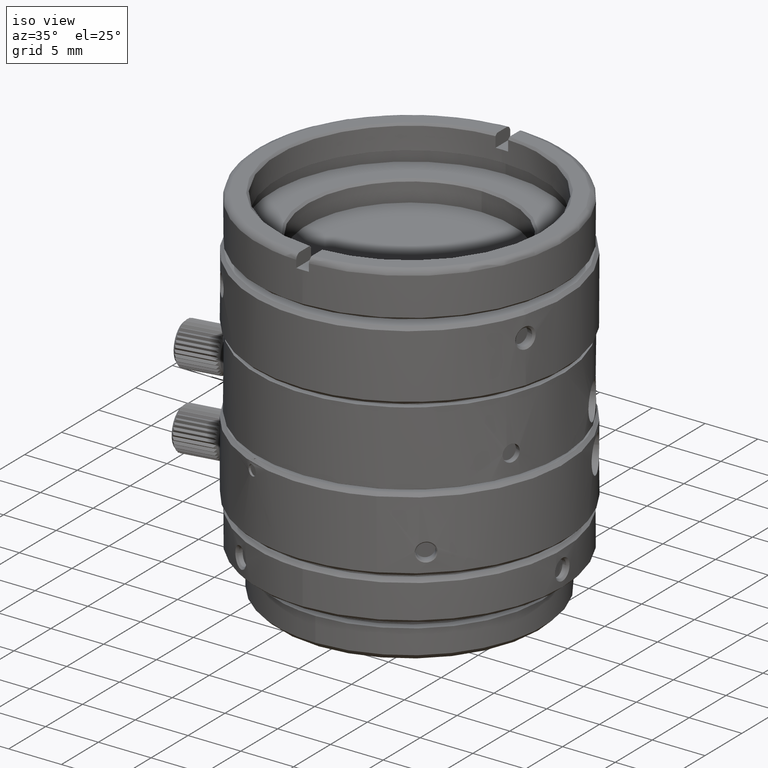
[diagram: clean part render]
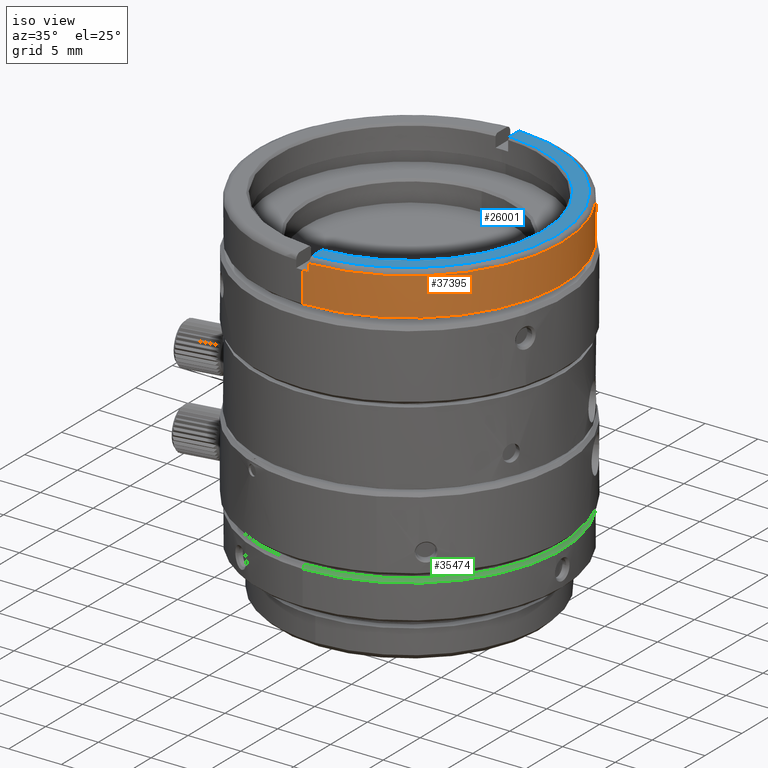
[diagram: same view with three faces highlighted in distinct colors, each labeled with its STEP entity id]
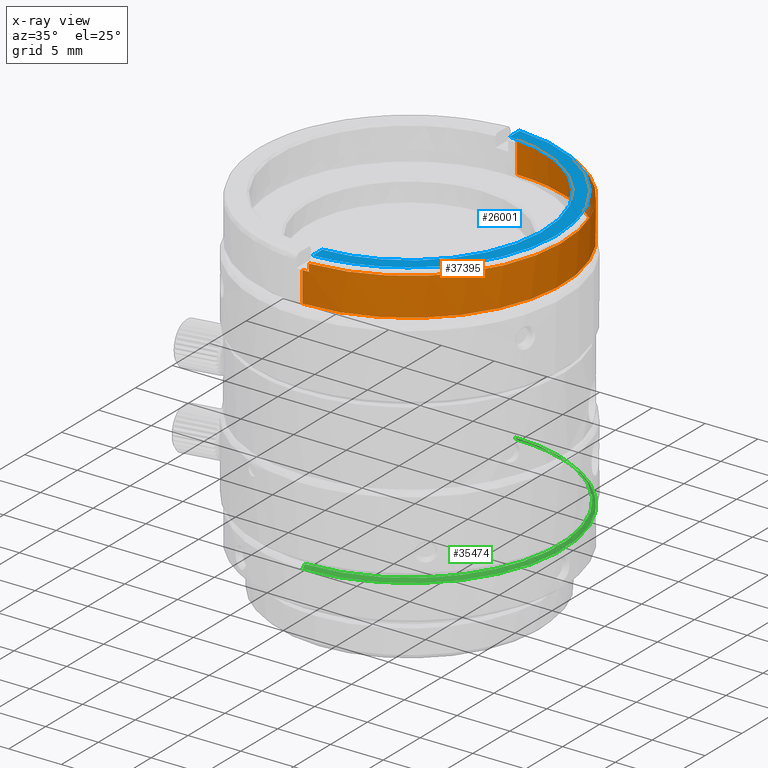
[diagram: x-ray of the same camera — body ghosted, the three highlighted faces saturated]
A machine part, iso view with three faces highlighted in distinct colors.
The next image is the same camera in x-ray (body ghosted, the three faces saturated) — at least one of them is partly hidden behind the body in this view.
Their STEP definitions:

[orange] entity #37395 — the highlighted face is a freeform B-spline surface patch.
#5 = ORIENTED_EDGE ( 'NONE', *, *, #25646, .T. ) ;
#1351 = B_SPLINE_CURVE_WITH_KNOTS ( 'NONE', 1,
 ( #5919, #9280 ),
 .UNSPECIFIED., .F., .F.,
 ( 2, 2 ),
 ( -1.000000000000000000, 0.0000000000000000000 ),
 .UNSPECIFIED. ) ;
#2759 = CARTESIAN_POINT ( 'NONE',  ( -2.322999127010760338E-09, 14.50000000000000000, 23.95340589699999967 ) ) ;
#3179 = VERTEX_POINT ( 'NONE', #2759 ) ;
#4772 = CARTESIAN_POINT ( 'NONE',  ( 0.6000000017153049869, -14.48758088861630000, 26.85340589753334939 ) ) ;
#5438 = CARTESIAN_POINT ( 'NONE',  ( 0.2000856856000000072, -14.49999999967433872, 26.85340589699999825 ) ) ;
#5919 = CARTESIAN_POINT ( 'NONE',  ( 2.322999127010760338E-09, -14.50000000000000000, 23.95340589699999967 ) ) ;
#6246 = CARTESIAN_POINT ( 'NONE',  ( 28.99999998884399233, -14.49999998810400470, 27.55340589699999754 ) ) ;
#7281 = CARTESIAN_POINT ( 'NONE',  ( 2.322999127010760338E-09, -14.50000000000000000, 23.95340589699999967 ) ) ;
#7839 =( BOUNDED_SURFACE ( )  B_SPLINE_SURFACE ( 1, 3, ( 
 ( #31211, #31004, #25110, #15273 ),
 ( #15481, #6246, #11703, #21981 ) ),
 .UNSPECIFIED., .F., .F., .T. ) 
 B_SPLINE_SURFACE_WITH_KNOTS ( ( 2, 2 ),
 ( 4, 4 ),
 ( 0.0000000000000000000, 1.000000000000000000 ),
 ( 0.0000000000000000000, 1.000000000000000000 ),
 .UNSPECIFIED. ) 
 GEOMETRIC_REPRESENTATION_ITEM ( )  RATIONAL_B_SPLINE_SURFACE ( (
 ( 1.000000000000000000, 0.3333333335299311084, 0.3333333335299311084, 1.000000000000000000),
 ( 1.000000000000000000, 0.3333333335299311084, 0.3333333335299311084, 1.000000000000000000) ) ) 
 REPRESENTATION_ITEM ( '' )  SURFACE ( )  );
#8767 = CARTESIAN_POINT ( 'NONE',  ( 2.322999127010760338E-09, -14.50000000000000000, 23.95340589699999967 ) ) ;
#9280 = CARTESIAN_POINT ( 'NONE',  ( 3.965332951296399337E-09, -14.49999999989143973, 26.85340589806665079 ) ) ;
#10019 = ORIENTED_EDGE ( 'NONE', *, *, #22823, .F. ) ;
#11135 = CARTESIAN_POINT ( 'NONE',  ( 27.33757960749307614, 13.38024985855763305, 27.55340589656657713 ) ) ;
#11368 = CARTESIAN_POINT ( 'NONE',  ( 0.6000000006015938636, 14.48758088866241955, 26.85340589753334939 ) ) ;
#11703 = CARTESIAN_POINT ( 'NONE',  ( 28.99999998550000058, 14.49999999479199886, 27.55340589699999754 ) ) ;
#12047 = CARTESIAN_POINT ( 'NONE',  ( 0.6000000030676410079, -14.48758088805265842, 27.55340589672220020 ) ) ;
#14809 = VERTEX_POINT ( 'NONE', #38452 ) ;
#14970 = ORIENTED_EDGE ( 'NONE', *, *, #24706, .F. ) ;
#15090 = CARTESIAN_POINT ( 'NONE',  ( 0.6000000017153049869, -14.48758088861630000, 26.85340589753334939 ) ) ;
#15098 = CARTESIAN_POINT ( 'NONE',  ( 0.6000000030676410079, -14.48758088805265842, 27.55340589672220020 ) ) ;
#15140 = CARTESIAN_POINT ( 'NONE',  ( 0.4000856856000000739, 14.49586029631310957, 26.85340589699999825 ) ) ;
#15273 = CARTESIAN_POINT ( 'NONE',  ( 2.604002345846171548E-09, 14.50000000000000000, 23.95340589699999967 ) ) ;
#15481 = CARTESIAN_POINT ( 'NONE',  ( 5.947999426944603969E-09, -14.50000000000000000, 27.55340589699999754 ) ) ;
#15811 = VERTEX_POINT ( 'NONE', #4772 ) ;
#17667 = VERTEX_POINT ( 'NONE', #12047 ) ;
#18328 = CARTESIAN_POINT ( 'NONE',  ( 0.6000000030676410079, -14.48758088805265842, 27.55340589672220020 ) ) ;
#20496 = B_SPLINE_CURVE_WITH_KNOTS ( 'NONE', 3,
 ( #34386, #5438, #31032, #15090 ),
 .UNSPECIFIED., .F., .F.,
 ( 4, 4 ),
 ( 4.712388980384689674, 4.753780108441049812 ),
 .UNSPECIFIED. ) ;
#21972 = CARTESIAN_POINT ( 'NONE',  ( -2.322999127010760338E-09, 14.50000000000000000, 23.95340589699999967 ) ) ;
#21981 = CARTESIAN_POINT ( 'NONE',  ( 2.604002345846171548E-09, 14.50000000000000000, 27.55340589699999754 ) ) ;
#22823 = EDGE_CURVE ( 'NONE', #17667, #31902, #36740, .T. ) ;
#23126 = ORIENTED_EDGE ( 'NONE', *, *, #39877, .F. ) ;
#23692 = FACE_OUTER_BOUND ( 'NONE', #25580, .T. ) ;
#24117 = CARTESIAN_POINT ( 'NONE',  ( 27.33757960749307614, -13.38024985855763305, 27.55340589656657713 ) ) ;
#24360 = ORIENTED_EDGE ( 'NONE', *, *, #36478, .T. ) ;
#24706 = EDGE_CURVE ( 'NONE', #38922, #3179, #37491, .T. ) ;
#24897 = CARTESIAN_POINT ( 'NONE',  ( 28.99999998550000768, 14.49999999479199175, 23.95340589699999967 ) ) ;
#25110 = CARTESIAN_POINT ( 'NONE',  ( 28.99999998550000058, 14.49999999479199886, 23.95340589699999612 ) ) ;
#25364 = EDGE_CURVE ( 'NONE', #14809, #15811, #20496, .T. ) ;
#25580 = EDGE_LOOP ( 'NONE', ( #24360, #14970, #23126, #5, #10019, #40103, #26231, #35259 ) ) ;
#25590 = B_SPLINE_CURVE_WITH_KNOTS ( 'NONE', 1,
 ( #18328, #31140 ),
 .UNSPECIFIED., .F., .F.,
 ( 2, 2 ),
 ( -1.000000000000000000, 0.0000000000000000000 ),
 .UNSPECIFIED. ) ;
#25646 = EDGE_CURVE ( 'NONE', #39993, #31902, #40025, .T. ) ;
#26136 = CARTESIAN_POINT ( 'NONE',  ( 0.6000000019539299956, 14.48758088809879929, 27.55340589672220020 ) ) ;
#26231 = ORIENTED_EDGE ( 'NONE', *, *, #25364, .F. ) ;
#30135 = CARTESIAN_POINT ( 'NONE',  ( 0.6000000019539299956, 14.48758088809879929, 27.55340589672220020 ) ) ;
#30428 = B_SPLINE_CURVE_WITH_KNOTS ( 'NONE', 3,
 ( #32375, #15140, #37166, #33824 ),
 .UNSPECIFIED., .F., .F.,
 ( 4, 4 ),
 ( 1.529405198738539973, 1.570796326794895004 ),
 .UNSPECIFIED. ) ;
#31004 = CARTESIAN_POINT ( 'NONE',  ( 28.99999998884399233, -14.49999998810400470, 23.95340589699999612 ) ) ;
#31032 = CARTESIAN_POINT ( 'NONE',  ( 0.4000856856000000183, -14.49586029631311135, 26.85340589699999825 ) ) ;
#31140 = CARTESIAN_POINT ( 'NONE',  ( 0.6000000017153049869, -14.48758088861630000, 26.85340589753334939 ) ) ;
#31211 = CARTESIAN_POINT ( 'NONE',  ( 5.947999426944603969E-09, -14.50000000000000000, 23.95340589699999967 ) ) ;
#31393 = EDGE_CURVE ( 'NONE', #36596, #14809, #1351, .T. ) ;
#31646 = CARTESIAN_POINT ( 'NONE',  ( 8.680007819487239529E-10, 14.49999999989143973, 26.85340589806665079 ) ) ;
#31850 = CARTESIAN_POINT ( 'NONE',  ( -2.322999127010760338E-09, 14.50000000000000000, 23.95340589699999967 ) ) ;
#31902 = VERTEX_POINT ( 'NONE', #30135 ) ;
#32375 = CARTESIAN_POINT ( 'NONE',  ( 0.6000000006015938636, 14.48758088866241955, 26.85340589753334939 ) ) ;
#33824 = CARTESIAN_POINT ( 'NONE',  ( 8.680007819487239529E-10, 14.49999999989143973, 26.85340589806665079 ) ) ;
#34186 = CARTESIAN_POINT ( 'NONE',  ( 0.6000000019539299956, 14.48758088809879752, 27.55340589672220020 ) ) ;
#34266 = CARTESIAN_POINT ( 'NONE',  ( 8.680007819487239529E-10, 14.49999999989143973, 26.85340589806665079 ) ) ;
#34386 = CARTESIAN_POINT ( 'NONE',  ( 3.965332951296399337E-09, -14.49999999989143973, 26.85340589806665079 ) ) ;
#34896 =( BOUNDED_CURVE ( )  B_SPLINE_CURVE ( 3, ( #8767, #40647, #24897, #21972 ),
 .UNSPECIFIED., .F., .T. ) 
 B_SPLINE_CURVE_WITH_KNOTS ( ( 4, 4 ),
 ( -7.853981633974480125, -4.712388980384689674 ),
 .UNSPECIFIED. ) 
 CURVE ( )  GEOMETRIC_REPRESENTATION_ITEM ( )  RATIONAL_B_SPLINE_CURVE ( ( 1.000000000000000000, 0.3333333335299309419, 0.3333333335299309419, 1.000000000000000000 ) ) 
 REPRESENTATION_ITEM ( '' )  );
#35259 = ORIENTED_EDGE ( 'NONE', *, *, #31393, .F. ) ;
#36478 = EDGE_CURVE ( 'NONE', #36596, #3179, #34896, .T. ) ;
#36596 = VERTEX_POINT ( 'NONE', #7281 ) ;
#36740 =( BOUNDED_CURVE ( )  B_SPLINE_CURVE ( 3, ( #15098, #24117, #11135, #34186 ),
 .UNSPECIFIED., .F., .F. ) 
 B_SPLINE_CURVE_WITH_KNOTS ( ( 4, 4 ),
 ( 4.753780108441049812, 7.812590505918129757 ),
 .UNSPECIFIED. ) 
 CURVE ( )  GEOMETRIC_REPRESENTATION_ITEM ( )  RATIONAL_B_SPLINE_CURVE ( ( 0.9397289228042475795, 0.3391665309306119980, 0.3391665309306119980, 0.9397289228042476905 ) ) 
 REPRESENTATION_ITEM ( '' )  );
#37166 = CARTESIAN_POINT ( 'NONE',  ( 0.2000856856000000072, 14.49999999967433872, 26.85340589699999825 ) ) ;
#37395 = ADVANCED_FACE ( 'NONE', ( #23692 ), #7839, .F. ) ;
#37491 = B_SPLINE_CURVE_WITH_KNOTS ( 'NONE', 1,
 ( #31646, #31850 ),
 .UNSPECIFIED., .F., .F.,
 ( 2, 2 ),
 ( -1.000000000000000000, 0.0000000000000000000 ),
 .UNSPECIFIED. ) ;
#37890 = EDGE_CURVE ( 'NONE', #17667, #15811, #25590, .T. ) ;
#38452 = CARTESIAN_POINT ( 'NONE',  ( 3.965332951296399337E-09, -14.49999999989143973, 26.85340589806665079 ) ) ;
#38922 = VERTEX_POINT ( 'NONE', #34266 ) ;
#38934 = CARTESIAN_POINT ( 'NONE',  ( 0.6000000006015938636, 14.48758088866241955, 26.85340589753334939 ) ) ;
#39877 = EDGE_CURVE ( 'NONE', #39993, #38922, #30428, .T. ) ;
#39993 = VERTEX_POINT ( 'NONE', #11368 ) ;
#40025 = B_SPLINE_CURVE_WITH_KNOTS ( 'NONE', 1,
 ( #38934, #26136 ),
 .UNSPECIFIED., .F., .F.,
 ( 2, 2 ),
 ( -1.000000000000000000, 0.0000000000000000000 ),
 .UNSPECIFIED. ) ;
#40103 = ORIENTED_EDGE ( 'NONE', *, *, #37890, .T. ) ;
#40647 = CARTESIAN_POINT ( 'NONE',  ( 28.99999998884399588, -14.49999998810401358, 23.95340589699999967 ) ) ;

[blue] entity #26001 — the highlighted face is a freeform B-spline surface patch.
#55 = CARTESIAN_POINT ( 'NONE',  ( 26.34210527417061698, -12.88288930120843645, 28.05340589639747506 ) ) ;
#1469 = CARTESIAN_POINT ( 'NONE',  ( 0.5999999999999999778, 14.15498259100000134, 28.05340589699999754 ) ) ;
#1731 = VERTEX_POINT ( 'NONE', #39033 ) ;
#1789 = CARTESIAN_POINT ( 'NONE',  ( 0.5999999982561829981, 12.68581885515174079, 28.05340589699999754 ) ) ;
#1990 = CARTESIAN_POINT ( 'NONE',  ( 3.776397085829599654, 12.15247870427938359, 28.05340589700000109 ) ) ;
#2390 = EDGE_CURVE ( 'NONE', #25957, #1731, #9959, .T. ) ;
#2781 = VERTEX_POINT ( 'NONE', #15036 ) ;
#3348 = ORIENTED_EDGE ( 'NONE', *, *, #2390, .F. ) ;
#5366 = CARTESIAN_POINT ( 'NONE',  ( 4.537181824627853466, -11.88940261533938170, 28.05340589700000109 ) ) ;
#5933 = ORIENTED_EDGE ( 'NONE', *, *, #31107, .T. ) ;
#6558 = CARTESIAN_POINT ( 'NONE',  ( 0.5999999999907850157, -12.68581885506969975, 28.05340589699999754 ) ) ;
#7911 = CARTESIAN_POINT ( 'NONE',  ( 11.12032403880440512, 6.187269747480075743, 28.05340589700000109 ) ) ;
#7988 = CARTESIAN_POINT ( 'NONE',  ( 14.08039999999999914, 14.15498259100000134, 28.05340589699999754 ) ) ;
#8887 = VERTEX_POINT ( 'NONE', #6558 ) ;
#9959 =( BOUNDED_CURVE ( )  B_SPLINE_CURVE ( 3, ( #12445, #12233, #55, #25238 ),
 .UNSPECIFIED., .F., .T. ) 
 B_SPLINE_CURVE_WITH_KNOTS ( ( 4, 4 ),
 ( 0.0000000000000000000, 3.055852107077114965 ),
 .UNSPECIFIED. ) 
 CURVE ( )  GEOMETRIC_REPRESENTATION_ITEM ( )  RATIONAL_B_SPLINE_CURVE ( ( 0.9383972337661943275, 0.3396104272766298782, 0.3396104272766298782, 0.9383972337661942165 ) ) 
 REPRESENTATION_ITEM ( '' )  );
#10940 = FACE_OUTER_BOUND ( 'NONE', #35098, .T. ) ;
#11251 = CARTESIAN_POINT ( 'NONE',  ( 12.09048164574306661, -3.970411429504093093, 28.05340589699999754 ) ) ;
#11448 = CARTESIAN_POINT ( 'NONE',  ( 12.70000000323120126, 0.8086492426544696910, 28.05340589699999754 ) ) ;
#11455 = ORIENTED_EDGE ( 'NONE', *, *, #12017, .T. ) ;
#12017 = EDGE_CURVE ( 'NONE', #2781, #8887, #27289, .T. ) ;
#12233 = CARTESIAN_POINT ( 'NONE',  ( 26.34210527417061698, 12.88288930120843645, 28.05340589639746440 ) ) ;
#12445 = CARTESIAN_POINT ( 'NONE',  ( 0.5999999986872439628, 13.98713694547134168, 28.05340589679914842 ) ) ;
#12512 = B_SPLINE_SURFACE_WITH_KNOTS ( 'NONE', 1, 1, ( 
 ( #30225, #1469 ),
 ( #39865, #7988 ) ),
 .UNSPECIFIED., .F., .F., .F.,
 ( 2, 2 ),
 ( 2, 2 ),
 ( 0.0000000000000000000, 1.000000000000000000 ),
 ( 0.0000000000000000000, 1.000000000000000000 ),
 .UNSPECIFIED. ) ;
#12883 = B_SPLINE_CURVE_WITH_KNOTS ( 'NONE', 1,
 ( #14729, #24362 ),
 .UNSPECIFIED., .F., .F.,
 ( 2, 2 ),
 ( 0.0000000000000000000, 1.000000000000000000 ),
 .UNSPECIFIED. ) ;
#14086 = CARTESIAN_POINT ( 'NONE',  ( 0.5999999986872439628, 13.98713694547134168, 28.05340589679914842 ) ) ;
#14207 = CARTESIAN_POINT ( 'NONE',  ( 8.023341247545470623, -9.877748202376185560, 28.05340589699999754 ) ) ;
#14605 = CARTESIAN_POINT ( 'NONE',  ( 8.631809329095737837, 9.350710186812307256, 28.05340589699999754 ) ) ;
#14729 = CARTESIAN_POINT ( 'NONE',  ( 0.5999999999907850157, -12.68581885506969975, 28.05340589699999754 ) ) ;
#14812 = CARTESIAN_POINT ( 'NONE',  ( 8.023341238558529653, 9.877748183502877311, 28.05340589700000464 ) ) ;
#15036 = CARTESIAN_POINT ( 'NONE',  ( 0.5999999982561829981, 12.68581885515174079, 28.05340589699999754 ) ) ;
#17547 = CARTESIAN_POINT ( 'NONE',  ( 11.48926558352653515, -5.471808653131576605, 28.05340589700000109 ) ) ;
#17945 = CARTESIAN_POINT ( 'NONE',  ( 6.705730518517730054, -10.81559484045272512, 28.05340589699998688 ) ) ;
#18149 = CARTESIAN_POINT ( 'NONE',  ( 9.748070980190666646, 8.180404989113050362, 28.05340589700000820 ) ) ;
#20498 = CARTESIAN_POINT ( 'NONE',  ( 10.24577392213239690, -7.547716901246611876, 28.05340589699999398 ) ) ;
#20699 = CARTESIAN_POINT ( 'NONE',  ( 11.48926557453960307, 5.471808653131580158, 28.05340589699999754 ) ) ;
#21099 = CARTESIAN_POINT ( 'NONE',  ( 11.12032403880440512, -6.187269747480076632, 28.05340589700000109 ) ) ;
#21304 = CARTESIAN_POINT ( 'NONE',  ( 2.204574950727199667, 12.53330616774542605, 28.05340589699999754 ) ) ;
#23844 = CARTESIAN_POINT ( 'NONE',  ( 12.62346428182226532, 1.609988578635939360, 28.05340589699999398 ) ) ;
#24041 = CARTESIAN_POINT ( 'NONE',  ( 12.09048165473000047, 3.970411429504085987, 28.05340589700000109 ) ) ;
#24249 = CARTESIAN_POINT ( 'NONE',  ( 12.70000000323120481, -0.8086492426544715784, 28.05340589700000820 ) ) ;
#24362 = CARTESIAN_POINT ( 'NONE',  ( 0.5999999986872449620, -13.98713694547134168, 28.05340589679914842 ) ) ;
#24443 = CARTESIAN_POINT ( 'NONE',  ( 3.776397085829600986, -12.15247872315269895, 28.05340589699999754 ) ) ;
#24652 = CARTESIAN_POINT ( 'NONE',  ( 1.407746277967720117, -12.64761495613876541, 28.05340589700000464 ) ) ;
#25238 = CARTESIAN_POINT ( 'NONE',  ( 0.5999999986872449620, -13.98713694547134168, 28.05340589679914842 ) ) ;
#25957 = VERTEX_POINT ( 'NONE', #14086 ) ;
#26001 = ADVANCED_FACE ( 'NONE', ( #10940 ), #12512, .T. ) ;
#27191 = CARTESIAN_POINT ( 'NONE',  ( 0.5999999999907850157, -12.68581885506969975, 28.05340589699999754 ) ) ;
#27289 = B_SPLINE_CURVE_WITH_KNOTS ( 'NONE', 3,
 ( #1789, #27391, #21304, #1990, #37050, #40189, #34107, #14812, #14605, #18149, #37453, #7911, #20699, #24041, #30958, #23844, #11448, #24249, #40604, #27596, #11251, #17547, #21099, #20498, #33906, #36648, #14207, #17945, #40400, #5366, #24443, #37252, #24652, #27191 ),
 .UNSPECIFIED., .F., .F.,
 ( 4, 2, 2, 2, 2, 2, 2, 2, 2, 2, 2, 2, 2, 2, 2, 2, 4 ),
 ( 0.0000000000000000000, 0.1904418299752972943, 0.3808836599505945886, 0.5713254899258919384, 0.7617673199011890661, 0.9522091498764860829, 1.142650979851783211, 1.333092809827080227, 1.523534639802377466, 1.713976469777674483, 1.904418299752971500, 2.094860129728269182, 2.285301959703565977, 2.475743789678863216, 2.666185619654160455, 2.856627449629458138, 3.047069279604755376 ),
 .UNSPECIFIED. ) ;
#27391 = CARTESIAN_POINT ( 'NONE',  ( 1.407746277967733661, 12.64761495613876541, 28.05340589700000109 ) ) ;
#27596 = CARTESIAN_POINT ( 'NONE',  ( 12.31732139618652688, -3.198047418379632134, 28.05340589699999398 ) ) ;
#30225 = CARTESIAN_POINT ( 'NONE',  ( 0.5999999999999999778, -14.15498259100000134, 28.05340589699999754 ) ) ;
#30922 = B_SPLINE_CURVE_WITH_KNOTS ( 'NONE', 1,
 ( #31606, #37903 ),
 .UNSPECIFIED., .F., .F.,
 ( 2, 2 ),
 ( 0.0000000000000000000, 1.000000000000000000 ),
 .UNSPECIFIED. ) ;
#30958 = CARTESIAN_POINT ( 'NONE',  ( 12.31732139618653221, 3.198047437252946157, 28.05340589700000464 ) ) ;
#31107 = EDGE_CURVE ( 'NONE', #25957, #2781, #30922, .T. ) ;
#31606 = CARTESIAN_POINT ( 'NONE',  ( 0.5999999986872439628, 13.98713694547134168, 28.05340589679914842 ) ) ;
#33906 = CARTESIAN_POINT ( 'NONE',  ( 9.748070980190663093, -8.180404970239745666, 28.05340589699999754 ) ) ;
#34107 = CARTESIAN_POINT ( 'NONE',  ( 6.705730527504667471, 10.81559485932603515, 28.05340589699999754 ) ) ;
#35098 = EDGE_LOOP ( 'NONE', ( #5933, #11455, #39603, #3348 ) ) ;
#36648 = CARTESIAN_POINT ( 'NONE',  ( 8.631809329095737837, -9.350710205685611953, 28.05340589699999398 ) ) ;
#37050 = CARTESIAN_POINT ( 'NONE',  ( 4.537181833614800652, 11.88940261533937459, 28.05340589699999754 ) ) ;
#37252 = CARTESIAN_POINT ( 'NONE',  ( 2.204574950727200555, -12.53330614887211070, 28.05340589699999043 ) ) ;
#37453 = CARTESIAN_POINT ( 'NONE',  ( 10.24577392213240046, 7.547716901246609211, 28.05340589700000109 ) ) ;
#37903 = CARTESIAN_POINT ( 'NONE',  ( 0.5999999982561829981, 12.68581885515174079, 28.05340589699999754 ) ) ;
#39033 = CARTESIAN_POINT ( 'NONE',  ( 0.5999999986872449620, -13.98713694547134168, 28.05340589679914842 ) ) ;
#39603 = ORIENTED_EDGE ( 'NONE', *, *, #40053, .T. ) ;
#39865 = CARTESIAN_POINT ( 'NONE',  ( 14.08039999999999914, -14.15498259100000134, 28.05340589699999754 ) ) ;
#40053 = EDGE_CURVE ( 'NONE', #8887, #1731, #12883, .T. ) ;
#40189 = CARTESIAN_POINT ( 'NONE',  ( 6.008498635731600146, 11.21792572304536684, 28.05340589700001175 ) ) ;
#40400 = CARTESIAN_POINT ( 'NONE',  ( 6.008498644718545556, -11.21792572304535440, 28.05340589700000109 ) ) ;
#40604 = CARTESIAN_POINT ( 'NONE',  ( 12.62346428182227065, -1.609988597509252939, 28.05340589700000464 ) ) ;

[green] entity #35474 — the highlighted face is a freeform B-spline surface patch.
#17 = CARTESIAN_POINT ( 'NONE',  ( 28.99999998810399759, -14.49999999999999467, 1.239328187999999997 ) ) ;
#690 = CARTESIAN_POINT ( 'NONE',  ( 14.19999999295680126, -1.860270046365771535, 1.539328188000000042 ) ) ;
#2904 =( BOUNDED_CURVE ( )  B_SPLINE_CURVE ( 3, ( #24845, #8712, #8503, #21494 ),
 .UNSPECIFIED., .F., .T. ) 
 B_SPLINE_CURVE_WITH_KNOTS ( ( 4, 4 ),
 ( -7.853981633974480125, -4.712388980384689674 ),
 .UNSPECIFIED. ) 
 CURVE ( )  GEOMETRIC_REPRESENTATION_ITEM ( )  RATIONAL_B_SPLINE_CURVE ( ( 1.000000000000000000, 0.3333333335299309419, 0.3333333335299309419, 1.000000000000000000 ) ) 
 REPRESENTATION_ITEM ( '' )  );
#3624 = CARTESIAN_POINT ( 'NONE',  ( 1.860270046365872565, -14.19999999295679771, 1.539328187999999598 ) ) ;
#6159 = B_SPLINE_CURVE_WITH_KNOTS ( 'NONE', 1,
 ( #13720, #26300 ),
 .UNSPECIFIED., .F., .F.,
 ( 2, 2 ),
 ( -1.000000000000000000, 0.0000000000000000000 ),
 .UNSPECIFIED. ) ;
#6369 = CARTESIAN_POINT ( 'NONE',  ( 7.152770165035626349, -12.40719485507631248, 1.539328188000000264 ) ) ;
#6748 = CARTESIAN_POINT ( 'NONE',  ( 28.39999999417505094, 14.19999998835012356, 1.539328188000000042 ) ) ;
#7204 = CARTESIAN_POINT ( 'NONE',  ( 12.40719485507627518, 7.152770165035712502, 1.539328188000000264 ) ) ;
#8503 = CARTESIAN_POINT ( 'NONE',  ( 28.99999998884399588, 14.49999998810401358, 1.239328188000198949 ) ) ;
#8712 = CARTESIAN_POINT ( 'NONE',  ( 28.99999998550000768, -14.49999999479199175, 1.239328187999999997 ) ) ;
#10352 = CARTESIAN_POINT ( 'NONE',  ( 11.35632584330337735, 8.725506748229422627, 1.539328188000000042 ) ) ;
#12862 = CARTESIAN_POINT ( 'NONE',  ( 8.725506748229353349, -11.35632584330344486, 1.539328188000000042 ) ) ;
#13469 =( BOUNDED_SURFACE ( )  B_SPLINE_SURFACE ( 1, 3, ( 
 ( #38633, #6748, #19524, #35909 ),
 ( #32336, #29190, #17, #19321 ) ),
 .UNSPECIFIED., .F., .F., .T. ) 
 B_SPLINE_SURFACE_WITH_KNOTS ( ( 2, 2 ),
 ( 4, 4 ),
 ( 0.0000000000000000000, 1.000000000000184075 ),
 ( 0.0000000000000000000, 1.000000000000000000 ),
 .UNSPECIFIED. ) 
 GEOMETRIC_REPRESENTATION_ITEM ( )  RATIONAL_B_SPLINE_SURFACE ( (
 ( 1.000000000000000000, 0.3333333334700690487, 0.3333333334700690487, 1.000000000000000000),
 ( 1.000000000000000000, 0.3333333334700690487, 0.3333333334700690487, 1.000000000000000000) ) ) 
 REPRESENTATION_ITEM ( '' )  SURFACE ( )  );
#13720 = CARTESIAN_POINT ( 'NONE',  ( 8.500421450808189935E-10, -14.19999999765226129, 1.539328188000000042 ) ) ;
#16649 = CARTESIAN_POINT ( 'NONE',  ( 3.715439309671577650, -13.83098389007569295, 1.539328188000000264 ) ) ;
#16864 = CARTESIAN_POINT ( 'NONE',  ( 3.715439309671525248, 13.83098389007571072, 1.539328188000000486 ) ) ;
#17719 = EDGE_CURVE ( 'NONE', #33136, #22977, #2904, .T. ) ;
#19290 = CARTESIAN_POINT ( 'NONE',  ( 2.322999127010760338E-09, 14.50000000000000000, 1.239328187999999997 ) ) ;
#19321 = CARTESIAN_POINT ( 'NONE',  ( 3.551475718111480263E-15, -14.50000000000000000, 1.239328187999999997 ) ) ;
#19524 = CARTESIAN_POINT ( 'NONE',  ( 28.39999998835011752, -14.19999999999999396, 1.539328188000000042 ) ) ;
#19994 = EDGE_CURVE ( 'NONE', #26861, #29434, #24313, .T. ) ;
#21494 = CARTESIAN_POINT ( 'NONE',  ( 2.322999127010760338E-09, 14.50000000000000000, 1.239328187999999997 ) ) ;
#22162 = EDGE_CURVE ( 'NONE', #26861, #33136, #6159, .T. ) ;
#22242 = ORIENTED_EDGE ( 'NONE', *, *, #19994, .F. ) ;
#22977 = VERTEX_POINT ( 'NONE', #41517 ) ;
#23137 = CARTESIAN_POINT ( 'NONE',  ( 8.725506748229422627, 11.35632584330337203, 1.539328187999999598 ) ) ;
#23365 = CARTESIAN_POINT ( 'NONE',  ( 3.883291579890270092E-09, 14.19999999765226129, 1.539328188000000042 ) ) ;
#24313 = B_SPLINE_CURVE_WITH_KNOTS ( 'NONE', 3,
 ( #38459, #3624, #16649, #6369, #12862, #29223, #29011, #29438, #690, #39094, #26286, #7204, #10352, #23137, #35947, #16864, #29653, #33012 ),
 .UNSPECIFIED., .F., .F.,
 ( 4, 2, 2, 2, 2, 2, 2, 2, 4 ),
 ( 4.712388980384689674, 5.105088062083413369, 5.497787143782137065, 5.890486225480861648, 6.283185307179584456, 6.675884388878309039, 7.068583470577032735, 7.461282552275756430, 7.853981633974480125 ),
 .UNSPECIFIED. ) ;
#24749 = CARTESIAN_POINT ( 'NONE',  ( -2.322999127010760338E-09, -14.50000000000000000, 1.239328187999999997 ) ) ;
#24845 = CARTESIAN_POINT ( 'NONE',  ( -2.322999127010760338E-09, -14.50000000000000000, 1.239328187999999997 ) ) ;
#26008 = CARTESIAN_POINT ( 'NONE',  ( 3.883291579890270092E-09, 14.19999999765226129, 1.539328188000000042 ) ) ;
#26286 = CARTESIAN_POINT ( 'NONE',  ( 13.83098389007572493, 3.715439309671486612, 1.539328188000000042 ) ) ;
#26300 = CARTESIAN_POINT ( 'NONE',  ( -2.322999127010760338E-09, -14.50000000000000000, 1.239328187999999997 ) ) ;
#26657 = EDGE_LOOP ( 'NONE', ( #22242, #27797, #27382, #40448 ) ) ;
#26861 = VERTEX_POINT ( 'NONE', #37902 ) ;
#27382 = ORIENTED_EDGE ( 'NONE', *, *, #17719, .T. ) ;
#27797 = ORIENTED_EDGE ( 'NONE', *, *, #22162, .T. ) ;
#29011 = CARTESIAN_POINT ( 'NONE',  ( 12.40719485507625386, -7.152770165035772898, 1.539328188000000264 ) ) ;
#29190 = CARTESIAN_POINT ( 'NONE',  ( 28.99999999405198992, 14.49999998810400115, 1.239328187999999997 ) ) ;
#29223 = CARTESIAN_POINT ( 'NONE',  ( 11.35632584330344663, -8.725506748229353349, 1.539328187999999598 ) ) ;
#29434 = VERTEX_POINT ( 'NONE', #23365 ) ;
#29438 = CARTESIAN_POINT ( 'NONE',  ( 13.83098389007574980, -3.715439309671432877, 1.539328188000000264 ) ) ;
#29653 = CARTESIAN_POINT ( 'NONE',  ( 1.860270046365872565, 14.19999999295679949, 1.539328188000000264 ) ) ;
#32336 = CARTESIAN_POINT ( 'NONE',  ( 5.947999426944603969E-09, 14.50000000000000000, 1.239328187999999997 ) ) ;
#33012 = CARTESIAN_POINT ( 'NONE',  ( 3.883291579890270092E-09, 14.19999999765226129, 1.539328188000000042 ) ) ;
#33136 = VERTEX_POINT ( 'NONE', #24749 ) ;
#33634 = B_SPLINE_CURVE_WITH_KNOTS ( 'NONE', 1,
 ( #19290, #26008 ),
 .UNSPECIFIED., .F., .F.,
 ( 2, 2 ),
 ( -1.000000000000000000, 0.0000000000000000000 ),
 .UNSPECIFIED. ) ;
#35474 = ADVANCED_FACE ( 'NONE', ( #35699 ), #13469, .F. ) ;
#35699 = FACE_OUTER_BOUND ( 'NONE', #26657, .T. ) ;
#35909 = CARTESIAN_POINT ( 'NONE',  ( 3.477996910484812492E-15, -14.20000000000000107, 1.539328188000000042 ) ) ;
#35947 = CARTESIAN_POINT ( 'NONE',  ( 7.152770165035678751, 12.40719485507629649, 1.539328188000000042 ) ) ;
#37173 = EDGE_CURVE ( 'NONE', #22977, #29434, #33634, .T. ) ;
#37902 = CARTESIAN_POINT ( 'NONE',  ( 8.500421450808189935E-10, -14.19999999765226129, 1.539328188000000042 ) ) ;
#38459 = CARTESIAN_POINT ( 'NONE',  ( 8.500421450808189935E-10, -14.19999999765226129, 1.539328188000000042 ) ) ;
#38633 = CARTESIAN_POINT ( 'NONE',  ( 5.824937369835404724E-09, 14.20000000000000107, 1.539328188000000042 ) ) ;
#39094 = CARTESIAN_POINT ( 'NONE',  ( 14.19999999295679949, 1.860270046365771313, 1.539328187999999820 ) ) ;
#40448 = ORIENTED_EDGE ( 'NONE', *, *, #37173, .T. ) ;
#41517 = CARTESIAN_POINT ( 'NONE',  ( 2.322999127010760338E-09, 14.50000000000000000, 1.239328187999999997 ) ) ;